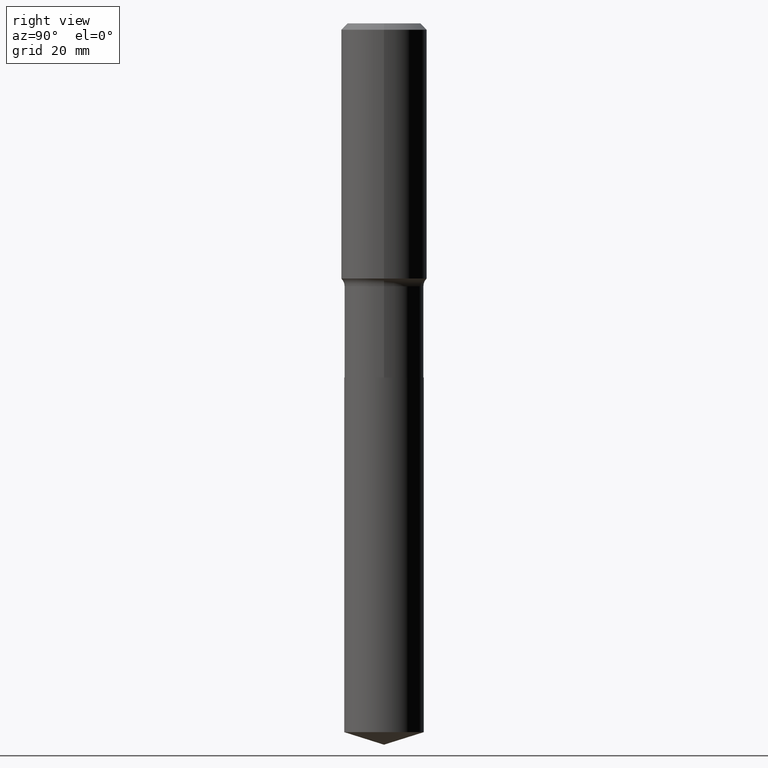
[diagram: clean part render]
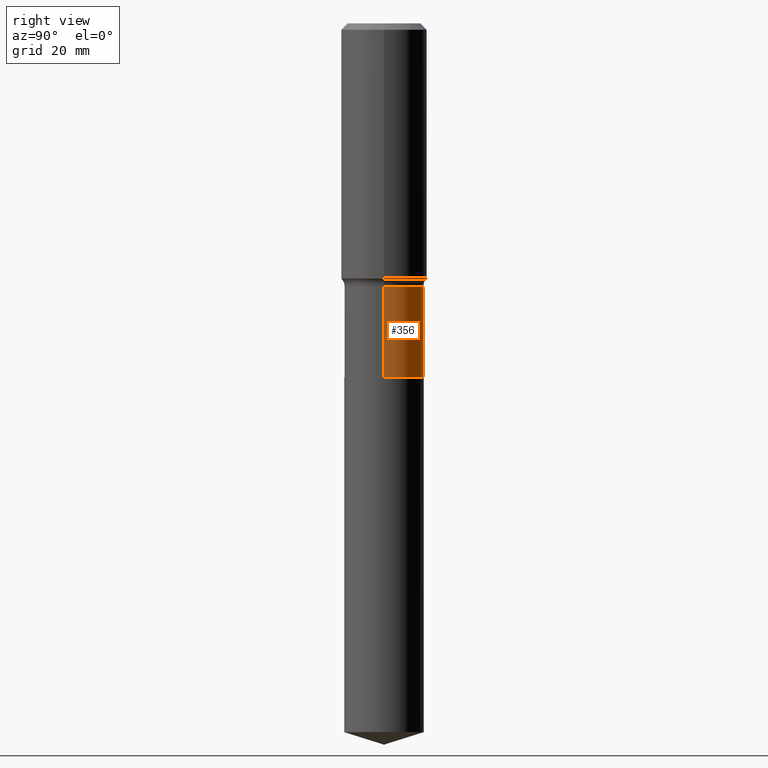
[diagram: same view with one face highlighted and labeled with its STEP entity id]
A machine part, right view. The second image highlights one B-rep face of the part: STEP entity #356.
In plain terms, the highlighted cylindrical surface (partial cylindrical patch) has radius 7.3419 mm, axis along (-0, 0, 1).
Its self-contained STEP definition (entity closure, byte-faithful):
#5 = DIRECTION ( 'NONE',  ( 1.000000000000000000, -6.982962677686269077E-15, 0.000000000000000000 ) ) ;
#6 = EDGE_CURVE ( 'NONE', #427, #247, #492, .T. ) ;
#18 = DIRECTION ( 'NONE',  ( -2.445468806185136597E-29, 3.491481338843145583E-15, 1.000000000000000000 ) ) ;
#42 = DIRECTION ( 'NONE',  ( -2.445468806185136877E-29, 3.491481338843145188E-15, 1.000000000000000000 ) ) ;
#53 = ORIENTED_EDGE ( 'NONE', *, *, #183, .T. ) ;
#56 = DIRECTION ( 'NONE',  ( 1.000000000000000000, -6.982962677686265922E-15, 4.876176775795935232E-29 ) ) ;
#75 = VECTOR ( 'NONE', #266, 39.37007874015748143 ) ;
#83 = VERTEX_POINT ( 'NONE', #286 ) ;
#95 = EDGE_CURVE ( 'NONE', #83, #247, #302, .T. ) ;
#110 = DIRECTION ( 'NONE',  ( -2.445468806185136597E-29, 3.491481338843145583E-15, 1.000000000000000000 ) ) ;
#121 = CARTESIAN_POINT ( 'NONE',  ( -0.2890499999999999736, 2.053823777714569400E-15, -1.421818187838180369E-29 ) ) ;
#122 = AXIS2_PLACEMENT_3D ( 'NONE', #412, #110, #447 ) ;
#183 = EDGE_CURVE ( 'NONE', #305, #83, #438, .T. ) ;
#188 = CARTESIAN_POINT ( 'NONE',  ( 0.2890499999999999736, -1.101806766098730598E-14, -2.577599999999999891 ) ) ;
#193 = EDGE_CURVE ( 'NONE', #305, #427, #457, .T. ) ;
#195 = CARTESIAN_POINT ( 'NONE',  ( 4.678915466874022448E-29, -6.680251245608591402E-15, -1.913300000000000001 ) ) ;
#225 = CARTESIAN_POINT ( 'NONE',  ( 0.2890499999999999736, -2.018425361985215001E-15, 1.409458897043814988E-29 ) ) ;
#235 = AXIS2_PLACEMENT_3D ( 'NONE', #464, #18, #56 ) ;
#247 = VERTEX_POINT ( 'NONE', #345 ) ;
#266 = DIRECTION ( 'NONE',  ( -2.445468806185136877E-29, 3.491481338843145188E-15, 1.000000000000000000 ) ) ;
#270 = EDGE_LOOP ( 'NONE', ( #53, #319, #477, #373 ) ) ;
#282 = AXIS2_PLACEMENT_3D ( 'NONE', #195, #341, #5 ) ;
#286 = CARTESIAN_POINT ( 'NONE',  ( -0.2890500000000000291, -5.786122994590770211E-15, -2.577599999999999891 ) ) ;
#302 = LINE ( 'NONE', #121, #310 ) ;
#305 = VERTEX_POINT ( 'NONE', #188 ) ;
#310 = VECTOR ( 'NONE', #42, 39.37007874015748143 ) ;
#314 = FACE_OUTER_BOUND ( 'NONE', #270, .T. ) ;
#319 = ORIENTED_EDGE ( 'NONE', *, *, #95, .T. ) ;
#341 = DIRECTION ( 'NONE',  ( -2.445468806185136597E-29, 3.491481338843145583E-15, 1.000000000000000000 ) ) ;
#345 = CARTESIAN_POINT ( 'NONE',  ( -0.2890499999999999181, -5.786122994590770999E-15, -1.913300000000000001 ) ) ;
#356 = ADVANCED_FACE ( 'NONE', ( #314 ), #385, .T. ) ;
#373 = ORIENTED_EDGE ( 'NONE', *, *, #193, .F. ) ;
#385 = CYLINDRICAL_SURFACE ( 'NONE', #235, 0.2890499999999999736 ) ;
#412 = CARTESIAN_POINT ( 'NONE',  ( 6.303440394822808632E-29, -8.999642299002091763E-15, -2.577599999999999891 ) ) ;
#419 = CARTESIAN_POINT ( 'NONE',  ( 0.2890499999999999181, -8.698676607593807193E-15, -1.913300000000000001 ) ) ;
#427 = VERTEX_POINT ( 'NONE', #419 ) ;
#438 = CIRCLE ( 'NONE', #122, 0.2890499999999999736 ) ;
#447 = DIRECTION ( 'NONE',  ( 1.000000000000000000, -6.982962677686267499E-15, 0.000000000000000000 ) ) ;
#457 = LINE ( 'NONE', #225, #75 ) ;
#464 = CARTESIAN_POINT ( 'NONE',  ( 0.000000000000000000, 0.000000000000000000, 0.000000000000000000 ) ) ;
#477 = ORIENTED_EDGE ( 'NONE', *, *, #6, .F. ) ;
#492 = CIRCLE ( 'NONE', #282, 0.2890499999999999181 ) ;